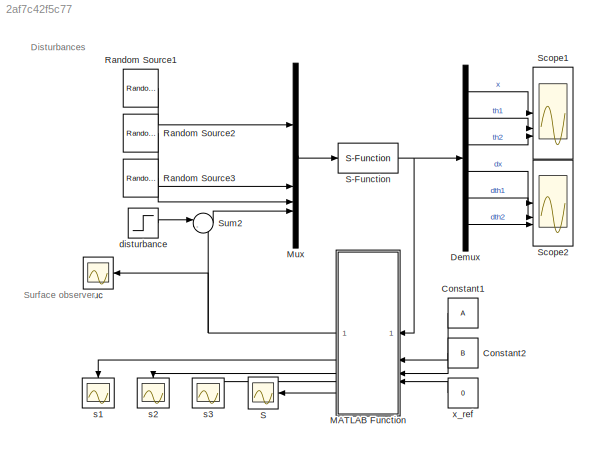
MODEL slx_2af7c42f5c77
KIND model
CONFIG AbsTol = auto
CONFIG EnableMultiTasking = off
CONFIG FixedStep = auto
CONFIG MaxStep = 1e-4
CONFIG MinStep = auto
CONFIG RelTol = 1e-3
CONFIG SampleTimeConstraint = Unconstrained
CONFIG SolverName = ode23t
CONFIG StartTime = 0.0
CONFIG StopTime = 30
BLOCK [Constant] Constant1
  NameLocation = top
  Value = A
BLOCK [Constant] Constant2
  NameLocation = top
  Value = B
BLOCK [Demux] Demux
  Outputs = 6
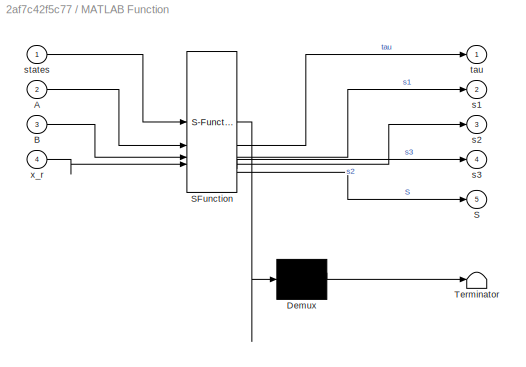
BLOCK [SubSystem] MATLAB Function
  ErrorFcn = Stateflow.Translate.translate
  LibrarySourceBlock = simulink/User-Defined\nFunctions/MATLAB Function
  NameLocation = top
  PermitHierarchicalResolution = ExplicitOnly
  SFBlockType = MATLAB Function
  TreatAsAtomicUnit = on
BLOCK [Demux] MATLAB Function/ Demux 
  Outputs = 1
BLOCK [S-Function] MATLAB Function/ SFunction 
  EnableBusSupport = on
  FunctionName = sf_sfun
  PortCounts = [4 6]
  SFcnIsStateOwnerBlock = off
  SFunctionDeploymentMode = off
  Tag = Stateflow S-Function 2
BLOCK [Terminator] MATLAB Function/ Terminator 
BLOCK [Inport] MATLAB Function/A
  Port = 2
BLOCK [Inport] MATLAB Function/B
  Port = 3
BLOCK [Outport] MATLAB Function/S
  Port = 5
BLOCK [Outport] MATLAB Function/s1
  Port = 2
BLOCK [Outport] MATLAB Function/s2
  Port = 3
BLOCK [Outport] MATLAB Function/s3
  Port = 4
BLOCK [Inport] MATLAB Function/states
BLOCK [Outport] MATLAB Function/tau
BLOCK [Inport] MATLAB Function/x_r
  Port = 4
BLOCK [Mux] Mux
  DisplayOption = bar
BLOCK [Reference] Random Source1  REF=dspsrcs4/Random
Source
  NameLocation = left
  SourceBlock = dspsrcs4/Random\nSource
  SourceType = Random Source
  UserDataPersistent = on
BLOCK [Reference] Random Source2  REF=dspsrcs4/Random
Source
  NameLocation = left
  SourceBlock = dspsrcs4/Random\nSource
  SourceType = Random Source
  UserDataPersistent = on
BLOCK [Reference] Random Source3  REF=dspsrcs4/Random
Source
  NameLocation = left
  SourceBlock = dspsrcs4/Random\nSource
  SourceType = Random Source
  UserDataPersistent = on
BLOCK [Scope] S
  Floating = off
  NumInputPorts = 1
  ScopeSpecificationString = Simulink.scopes.TimeScopeBlockCfg('CurrentConfiguration', extmgr.ConfigurationSet(extmgr.Configuration('Core','General UI',true,'FigureColor',[1 1 1]),extmgr.Configuration('Core','Source UI',true),extmgr.Configuration('Sources','WiredSimulink',true,'DataLoggingVariableName','ScopeData1'),extmgr.Configuration('Visuals','Time Domain',true,'SerializedDisplays',{struct('MinYLimReal','-0.78553','MaxYLi...<+1918ch>
BLOCK [S-Function] S-Function
  EnableBusSupport = off
  FunctionName = plant_dis
  Parameters = CoeF1, CoeF2, CoeF3, theta1_rad, theta2_rad
  SFcnIsStateOwnerBlock = off
  SFunctionDeploymentMode = off
BLOCK [Scope] Scope1
  Floating = off
  NumInputPorts = 3
  ScopeSpecificationString = Simulink.scopes.TimeScopeBlockCfg('CurrentConfiguration', extmgr.ConfigurationSet(extmgr.Configuration('Core','General UI',true,'FigureColor',[1 1 1]),extmgr.Configuration('Core','Source UI',true),extmgr.Configuration('Sources','WiredSimulink',true,'DataLoggingVariableName','ScopeData1'),extmgr.Configuration('Visuals','Time Domain',true,'SerializedDisplays',{struct('MinYLimReal','-0.15563','MaxYLi...<+1916ch>
BLOCK [Scope] Scope2
  Floating = off
  NumInputPorts = 3
  ScopeSpecificationString = Simulink.scopes.TimeScopeBlockCfg('CurrentConfiguration', extmgr.ConfigurationSet(extmgr.Configuration('Core','General UI',true,'FigureColor',[1 1 1]),extmgr.Configuration('Core','Source UI',true),extmgr.Configuration('Sources','WiredSimulink',true),extmgr.Configuration('Visuals','Time Domain',true,'SerializedDisplays',{struct('MinYLimReal','-1.26426','MaxYLimReal','0.68357','YLabelReal','','MinYL...<+1879ch>
BLOCK [Sum] Sum2
  Inputs = |-+
BLOCK [Step] disturbance
  After = input_dis
  NameLocation = left
  SampleTime = 0
  Time = input_dis_time
BLOCK [Scope] s1
  Floating = off
  NumInputPorts = 1
  ScopeSpecificationString = Simulink.scopes.TimeScopeBlockCfg('CurrentConfiguration', extmgr.ConfigurationSet(extmgr.Configuration('Core','General UI',true,'FigureColor',[1 1 1]),extmgr.Configuration('Core','Source UI',true),extmgr.Configuration('Sources','WiredSimulink',true,'DataLoggingVariableName','ScopeData2'),extmgr.Configuration('Visuals','Time Domain',true,'SerializedDisplays',{struct('MinYLimReal','-1.35765','MaxYLi...<+1920ch>
BLOCK [Scope] s2
  Floating = off
  NumInputPorts = 1
  ScopeSpecificationString = Simulink.scopes.TimeScopeBlockCfg('CurrentConfiguration', extmgr.ConfigurationSet(extmgr.Configuration('Core','General UI',true,'FigureColor',[1 1 1]),extmgr.Configuration('Core','Source UI',true),extmgr.Configuration('Sources','WiredSimulink',true,'DataLoggingVariableName','ScopeData3'),extmgr.Configuration('Visuals','Time Domain',true,'SerializedDisplays',{struct('MinYLimReal','-0.11809','MaxYLi...<+1921ch>
BLOCK [Scope] s3
  Floating = off
  NumInputPorts = 1
  ScopeSpecificationString = Simulink.scopes.TimeScopeBlockCfg('CurrentConfiguration', extmgr.ConfigurationSet(extmgr.Configuration('Core','General UI',true,'FigureColor',[1 1 1]),extmgr.Configuration('Core','Source UI',true),extmgr.Configuration('Sources','WiredSimulink',true,'DataLoggingVariableName','ScopeData4'),extmgr.Configuration('Visuals','Time Domain',true,'SerializedDisplays',{struct('MinYLimReal','-0.42487','MaxYLi...<+1918ch>
BLOCK [Scope] uc
  Floating = off
  NameLocation = left
  NumInputPorts = 1
  ScopeSpecificationString = Simulink.scopes.TimeScopeBlockCfg('CurrentConfiguration', extmgr.ConfigurationSet(extmgr.Configuration('Core','General UI',true,'FigureColor',[1 1 1]),extmgr.Configuration('Core','Source UI',true),extmgr.Configuration('Sources','WiredSimulink',true,'DataLoggingVariableName','ScopeData6'),extmgr.Configuration('Visuals','Time Domain',true,'SerializedDisplays',{struct('MinYLimReal','-1.10999','MaxYLi...<+2323ch>
BLOCK [Constant] x_ref
  Value = 0
ANNOTATION (root): Disturbances
ANNOTATION (root): Surface observer
LINE Constant1:1 -> MATLAB Function:2
LINE Constant2:1 -> MATLAB Function:3
LINE Demux:1 -> Scope1:1
LINE Demux:2 -> Scope1:2
LINE Demux:3 -> Scope1:3
LINE Demux:4 -> Scope2:1
LINE Demux:5 -> Scope2:2
LINE Demux:6 -> Scope2:3
NET MATLAB Function:1 -> Sum2:2, uc:1
LINE MATLAB Function:2 -> s1:1
LINE MATLAB Function:3 -> s2:1
LINE MATLAB Function:4 -> s3:1
LINE MATLAB Function:5 -> S:1
LINE Mux:1 -> S-Function:1
LINE Random Source1:1 -> Mux:1
LINE Random Source2:1 -> Mux:2
LINE Random Source3:1 -> Mux:3
NET S-Function:1 -> Demux:1, MATLAB Function:1
LINE Sum2:1 -> Mux:4
LINE disturbance:1 -> Sum2:1
LINE x_ref:1 -> MATLAB Function:4
note: NET lines group one-source signal fan-out (src -> all destinations, sorted); 1:1 wires keep LINE
CHART MATLAB Function states=1 transitions=1
  STATE_LABEL 'eML_blk_kernel()'
  STATE_LABEL 'SCRIPT:\nfunction [tau, s1, s2, s3, S] = fcn(states, A, B, x_r)\n\nc1 = 2;       % 2\nc2 = 5;         % 5\nc3 = 1.3;       % 1.6 - 1.7？\n\nalpha = 3;    % 1.5\nbeta =  8.8;     % 4.4\ngamma = 5.4;    % 2.7\n\neta = 0.005;    % 0.005\nk = 10;         % 20\n\nx = states(1);\nth1 = states(2);\nth2 = states(3);\n\ndx = states(4);\ndth1 = states(5);\ndth2 = states(6);\n\ns1 = c1 * th1 + dth1;\ns2 = c2 * th2 + dth2;\ns3 = c3 *...<+711ch>'
CHART  states=0 transitions=0
